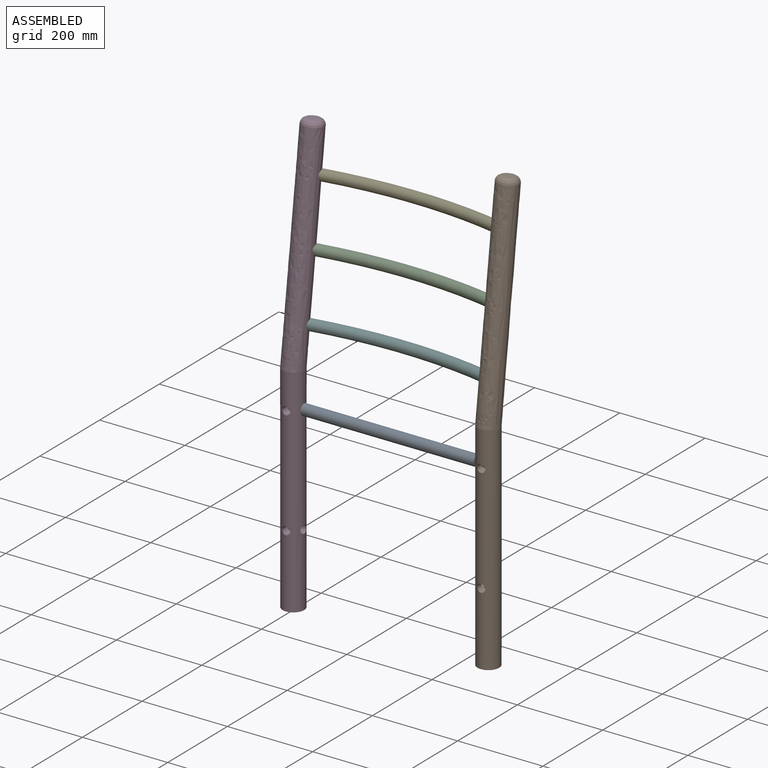
[diagram: assembled view]
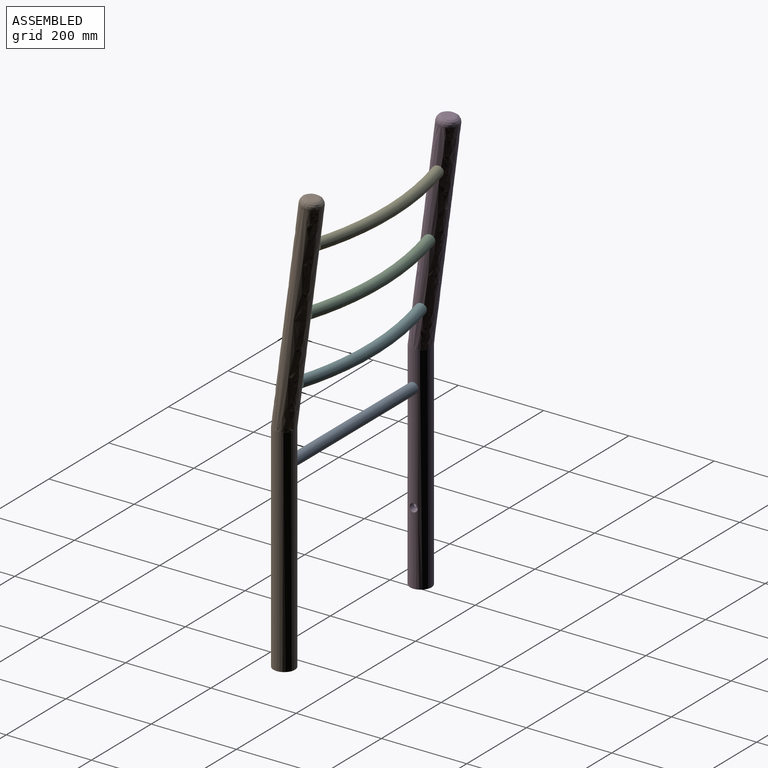
[diagram: assembled view, second angle]
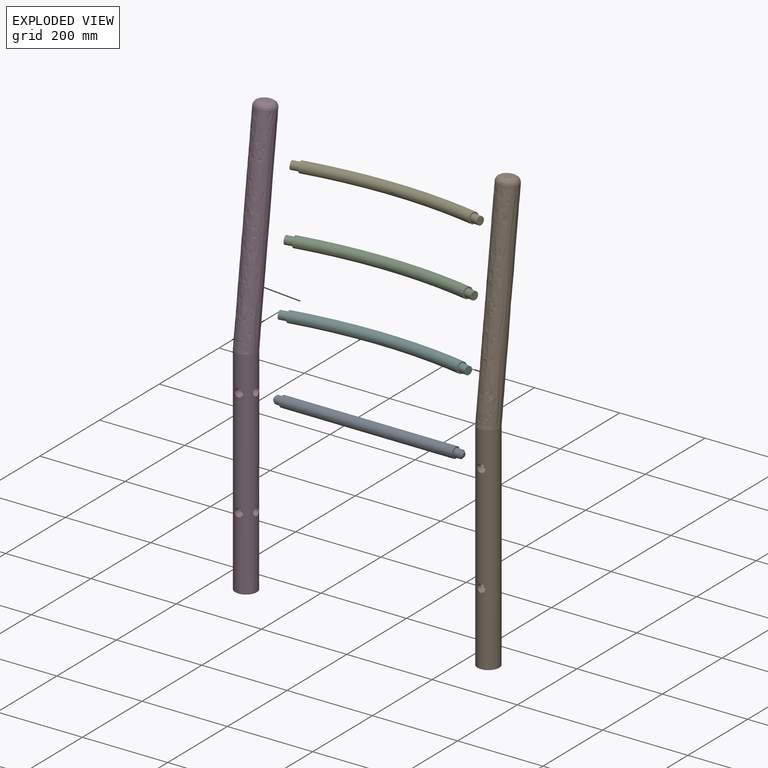
[diagram: exploded view]
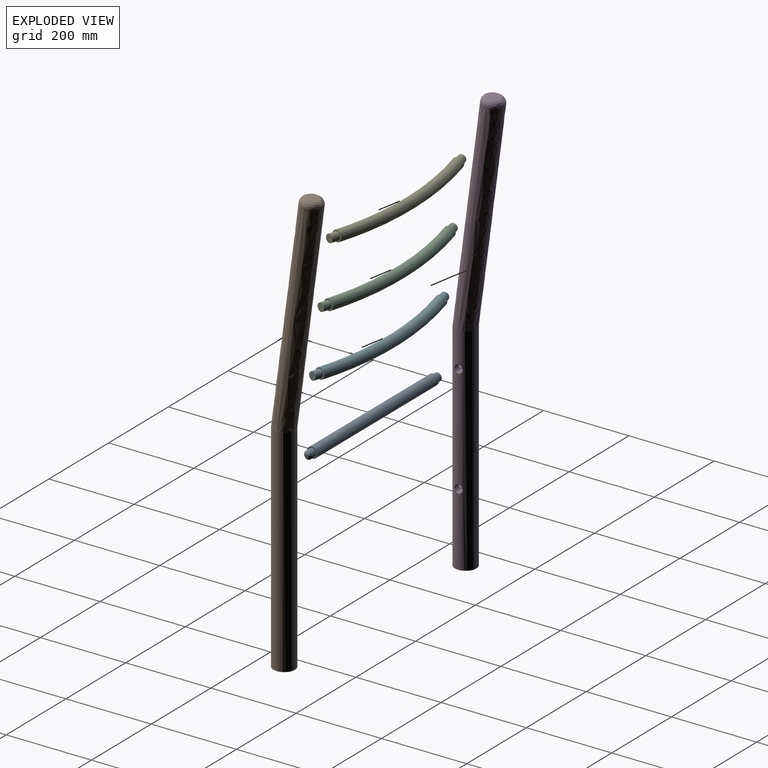
[diagram: exploded view, second angle]
ASSEMBLY  parts=6 mates=5
PART A: 9 faces, bbox 444.5x25.4x25.4 mm
  f0: cylinder r=12.7mm len=406.4mm, axis (-1,0,0), area 32429.3mm2, adj f1,f2
  f1: plane 25.4x25.4mm, normal (1,0,0), area 221.7mm2, adj f0,f3
  f2: plane 25.4x25.4mm, normal (-1,0,0), area 221.7mm2, adj f0,f5
  f3: cylinder r=9.53mm len=19.05mm, axis (-1,0,0), area 836.1mm2, adj f1,f7
  f4: plane 8.89x8.89mm, normal (1,0,0), area 62.1mm2, adj f7
  f5: cylinder r=9.53mm len=19.05mm, axis (1,0,0), area 836.1mm2, adj f2,f8
  f6: plane 8.89x8.89mm, normal (-1,0,0), area 62.1mm2, adj f8
  f7: cone r=4.45mm half-angle=45deg, axis (-1,0,0), area 315.3mm2, adj f3,f4
  f8: cone r=4.45mm half-angle=45deg, axis (1,0,0), area 315.3mm2, adj f5,f6
PART B: 21 faces, bbox 52.3x116.7x1014.9 mm
  f0: cylinder r=25.4mm len=508mm, axis (0,0,-1), area 79764.2mm2, adj f1,f2,f3,f8,f10,f18,f19
  f1: cylinder r=9.53mm len=19.05mm, axis (0,-1,0), area 1051.5mm2, adj f0,f6,f10
  f2: cylinder r=9.53mm len=19.05mm, axis (0,-1,0), area 1051.5mm2, adj f0,f7,f8
  f3: plane 50.8x50.8mm, normal (0,0,-1), area 2026.8mm2, adj f0
  f4: extruded ~499.48x114.83mm, area 77687.1mm2, adj f12,f14,f16,f18,f19,f20
  f5: plane 25.4x24.76mm, normal (0,0.13,0.99), area 498mm2, adj f20
  f6: plane 19.05x15.88mm, normal (0,-1,0), area 253.8mm2, adj f1,f11
  f7: plane 19.05x15.88mm, normal (0,-1,0), area 253.8mm2, adj f2,f9
  f8: cylinder r=9.53mm len=19.05mm, axis (-1,0,0), area 1051.8mm2, adj f0,f2,f9
  f9: plane 19.05x15.88mm, normal (-1,0,0), area 253.8mm2, adj f7,f8
  f10: cylinder r=9.53mm len=19.05mm, axis (-1,0,0), area 1051.8mm2, adj f0,f1,f11
  f11: plane 19.05x15.88mm, normal (-1,0,0), area 253.8mm2, adj f6,f10
  f12: cylinder r=9.53mm len=20.69mm, axis (-0.97,0.24,-0.03), area 486.5mm2, adj f4,f13
  f13: plane 19.04x18.47mm, normal (-0.97,0.24,-0.03), area 285mm2, adj f12
  f14: cylinder r=9.53mm len=20.69mm, axis (-0.97,0.24,-0.03), area 486.5mm2, adj f4,f15
  f15: plane 19.04x18.47mm, normal (-0.97,0.24,-0.03), area 285mm2, adj f14
  f16: cylinder r=9.53mm len=20.69mm, axis (-0.97,0.24,-0.03), area 486.5mm2, adj f4,f17
  f17: plane 19.04x18.47mm, normal (-0.97,0.24,-0.03), area 285mm2, adj f16
  f18: bspline ~50.8x25.59mm, area 148mm2, adj f0,f4
  f19: bspline ~50.8x25.4mm, area 149.5mm2, adj f0,f4
  f20: bspline ~51.6x50.81mm, area 2591.5mm2, adj f4,f5
PART C: 7 faces, bbox 448x121.1x25.4 mm
  f0: plane 25.4x24.62mm, normal (-0.97,-0.25,0), area 221.7mm2, adj f2,f3
  f1: plane 25.4x24.62mm, normal (0.97,-0.25,0), area 221.7mm2, adj f2,f5
  f2: torus R=825.5mm, axis (0,0,-1), area 32766mm2, adj f0,f1
  f3: cylinder r=9.53mm len=23.15mm, axis (0.97,0.25,0), area 1140.1mm2, adj f0,f4
  f4: plane 19.05x18.46mm, normal (-0.97,-0.25,0), area 285mm2, adj f3
  f5: cylinder r=9.53mm len=23.15mm, axis (-0.97,0.25,0), area 1140.1mm2, adj f1,f6
  f6: plane 19.05x18.46mm, normal (0.97,-0.25,0), area 285mm2, adj f5
PART D: 15 faces, bbox 50.8x116.7x1014.9 mm
  f0: plane 19.05x15.88mm, normal (0,-1,0), area 253.8mm2, adj f6,f11
  f1: plane 19.05x15.88mm, normal (0,-1,0), area 253.8mm2, adj f7,f9
  f2: cylinder r=25.4mm len=508mm, axis (0,0,-1), area 79763.2mm2, adj f3,f6,f7,f8,f10,f13,f14
  f3: plane 50.8x50.8mm, normal (0,0,-1), area 2026.8mm2, adj f2
  f4: extruded ~499.48x114.83mm, area 78559.6mm2, adj f12,f13,f14
  f5: plane 25.4x24.76mm, normal (0,0.13,0.99), area 498mm2, adj f12
  f6: cylinder r=9.53mm len=19.05mm, axis (0,-1,0), area 1051.5mm2, adj f0,f2,f10
  f7: cylinder r=9.53mm len=19.05mm, axis (0,-1,0), area 1051.5mm2, adj f1,f2,f8
  f8: cylinder r=9.53mm len=19.05mm, axis (1,0,0), area 1051.7mm2, adj f2,f7,f9
  f9: plane 19.05x15.88mm, normal (1,0,0), area 253.8mm2, adj f1,f8
  f10: cylinder r=9.53mm len=19.05mm, axis (1,0,0), area 1051.7mm2, adj f2,f6,f11
  f11: plane 19.05x15.88mm, normal (1,0,0), area 253.8mm2, adj f0,f10
  f12: bspline ~51.6x50.81mm, area 2591.5mm2, adj f4,f5
  f13: bspline ~50.8x25.59mm, area 148mm2, adj f2,f4
  f14: bspline ~50.8x25.4mm, area 149.5mm2, adj f2,f4
PART E: same geometry as C
PART F: same geometry as C
PLACE A t=(-558.23,83.57,432.83)mm fixed
PLACE B t=(-126.3,83.57,7.38)mm
PLACE C rot(axis=(-1,0,0),7.5deg) t=(-354.13,121.89,756.92)mm
PLACE D t=(-583.76,83.57,7.38)mm
PLACE E rot(axis=(-1,0,0),7.5deg) t=(-354.13,141.78,908.01)mm
PLACE F rot(axis=(-1,0,0),7.5deg) t=(-354.13,102,605.82)mm
MATE fastened C.f5 <-> B.f14  axis (-0.97,0.24,-0.03) through (-150.93,121.89,756.92)mm
MATE fastened A.f3 <-> D.f8  axis (1,0,0) through (-558.23,83.57,432.83)mm
MATE fastened A.f3 <-> B.f8  axis (-1,0,0) through (-151.83,83.57,432.83)mm
MATE fastened F.f5 <-> B.f12  axis (-0.97,0.24,-0.03) through (-150.93,102,605.82)mm
MATE fastened E.f5 <-> B.f16  axis (-0.97,0.24,-0.03) through (-150.93,141.78,908.01)mm
